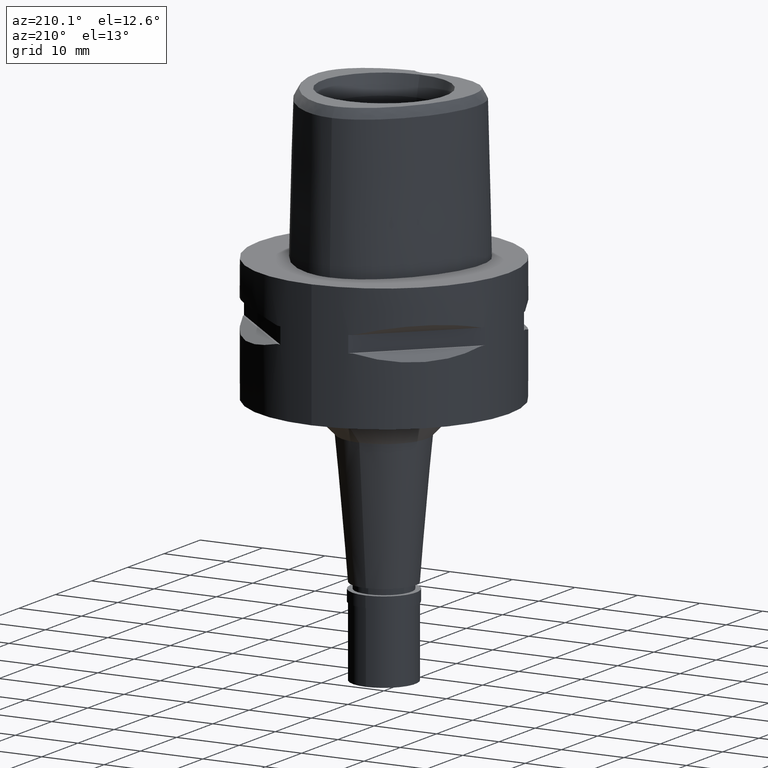
[diagram: clean part render]
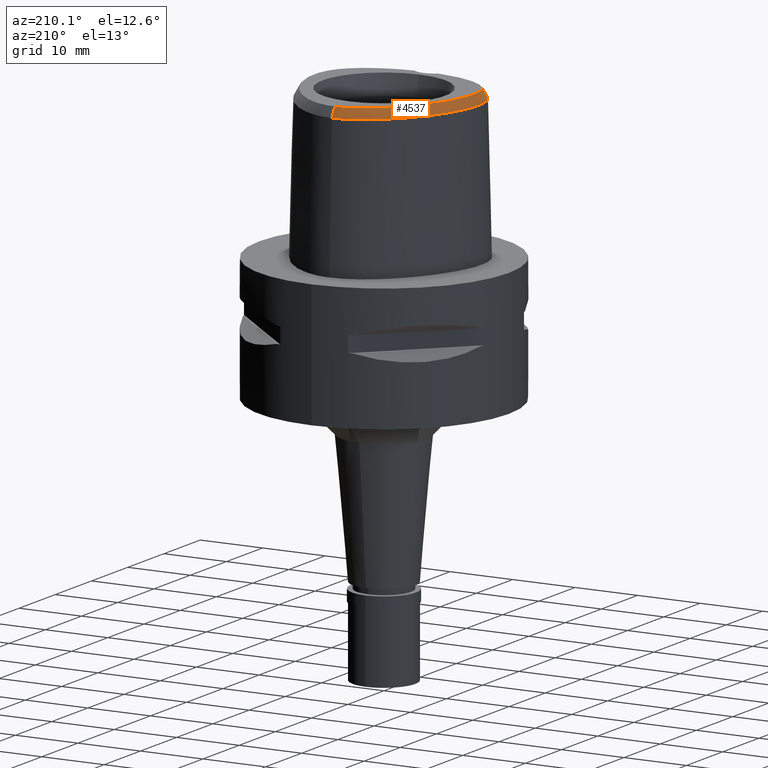
[diagram: same view with one face highlighted and labeled with its STEP entity id]
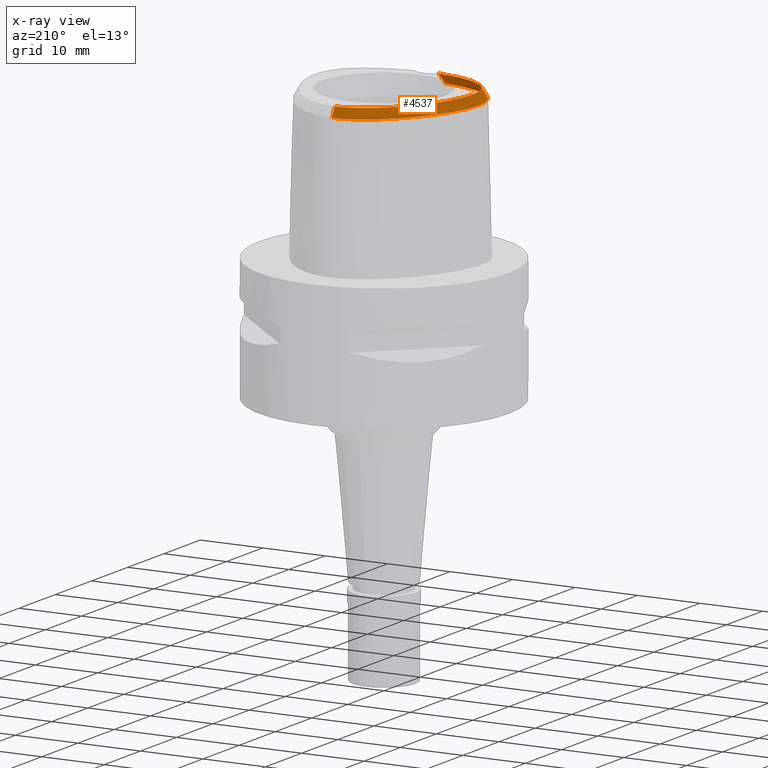
[diagram: x-ray of the same camera — body ghosted, the highlighted face saturated]
A machine part, auxiliary view. The second image highlights one B-rep face of the part: STEP entity #4537.
The next image is the same camera in x-ray: the body ghosted, the highlighted face saturated — about 0% of this face is hidden behind the body in this view.
In plain terms, the highlighted face is a freeform B-spline surface patch.
Its self-contained STEP definition (entity closure, byte-faithful):
#13 = CARTESIAN_POINT ( 'NONE',  ( -9.461949642908999536, -10.27565389877999991, 22.41659132208999949 ) ) ;
#38 = CARTESIAN_POINT ( 'NONE',  ( -7.666593202468000356, -10.51781865839999952, 23.54157057967000100 ) ) ;
#40 = CARTESIAN_POINT ( 'NONE',  ( -2.145202358281222743, -11.88058199921933422, 23.61561870677756403 ) ) ;
#64 = CARTESIAN_POINT ( 'NONE',  ( -8.292628815282999000, -9.858831194713999935, 24.10406072634999930 ) ) ;
#118 = CARTESIAN_POINT ( 'NONE',  ( 0.2476441349136999925, 13.82473732917000042, 23.54157073996999827 ) ) ;
#137 = CARTESIAN_POINT ( 'NONE',  ( -2.272794936003999844, 13.79076444038000027, 22.97908034890999929 ) ) ;
#142 = EDGE_LOOP ( 'NONE', ( #3043, #857, #396, #2967 ) ) ;
#160 = CARTESIAN_POINT ( 'NONE',  ( -5.325554841747999646, 11.47037327101999971, 24.10406076736999736 ) ) ;
#171 = CARTESIAN_POINT ( 'NONE',  ( -12.25469206170833480, -5.716132091641501489, 23.99999999999992895 ) ) ;
#186 = FACE_OUTER_BOUND ( 'NONE', #142, .T. ) ;
#193 = CARTESIAN_POINT ( 'NONE',  ( -7.606300872726211360, 9.460291049260554530, 23.99999999999949551 ) ) ;
#197 = CARTESIAN_POINT ( 'NONE',  ( -4.649494456246297425, 12.01569862248590681, 24.00000000000231992 ) ) ;
#216 = CARTESIAN_POINT ( 'NONE',  ( -10.56030324369852913, -8.308636727332366689, 23.99999999999988987 ) ) ;
#221 = CARTESIAN_POINT ( 'NONE',  ( -1.591423031973000057, -12.60134633935000004, 22.41659162168000208 ) ) ;
#233 = CARTESIAN_POINT ( 'NONE',  ( -12.39144147628000070, 0.1219901310690999913, 24.10406049083999847 ) ) ;
#260 = CARTESIAN_POINT ( 'NONE',  ( -8.557144725376998551, 8.748032990972999912, 23.54157062195999828 ) ) ;
#282 = CARTESIAN_POINT ( 'NONE',  ( -13.59762328403999909, -1.636476083785999958, 22.41659054759999847 ) ) ;
#304 = CARTESIAN_POINT ( 'NONE',  ( -13.63629650227000134, -2.516089415543000030, 22.41659067536999927 ) ) ;
#330 = CARTESIAN_POINT ( 'NONE',  ( -12.00135282760999900, 3.522838401703999978, 22.97908066880999911 ) ) ;
#341 = CARTESIAN_POINT ( 'NONE',  ( -9.075996546496313044, -10.47368666963242667, 22.52071717950007468 ) ) ;
#350 = CARTESIAN_POINT ( 'NONE',  ( -12.79339990034000074, -5.909886586550999965, 22.97908099604000043 ) ) ;
#368 = CARTESIAN_POINT ( 'NONE',  ( -12.50552227923999915, -4.595377243947000423, 24.10406073897999946 ) ) ;
#392 = CARTESIAN_POINT ( 'NONE',  ( -12.06179124933999880, -6.773514726855000667, 23.54157075530000043 ) ) ;
#396 = ORIENTED_EDGE ( 'NONE', *, *, #2890, .F. ) ;
#415 = CARTESIAN_POINT ( 'NONE',  ( -12.00019671756999884, -8.023386892387000202, 22.41659127907999860 ) ) ;
#465 = CARTESIAN_POINT ( 'NONE',  ( -4.401205687814000456, 13.20438657368999991, 22.41659724122999719 ) ) ;
#487 = CARTESIAN_POINT ( 'NONE',  ( -0.04784504539171999943, 13.51744368559000087, 24.10406070497999664 ) ) ;
#499 = CARTESIAN_POINT ( 'NONE',  ( -10.73901715994000128, -8.493405840528000184, 23.54157069984000117 ) ) ;
#505 = CARTESIAN_POINT ( 'NONE',  ( -1.669973839135000082, 13.95402365622999774, 22.97908096688000157 ) ) ;
#520 = CARTESIAN_POINT ( 'NONE',  ( -3.678874086876000149, -11.72068258363000126, 23.54157049556000203 ) ) ;
#526 = CARTESIAN_POINT ( 'NONE',  ( -0.05462346434944000129, 14.46350026968999991, 22.41659103785999818 ) ) ;
#537 = CARTESIAN_POINT ( 'NONE',  ( -8.357232578963911251, 8.586563883649542817, 24.00000000000138556 ) ) ;
#553 = CARTESIAN_POINT ( 'NONE',  ( -0.05010451837762999738, 13.83279588028999996, 23.54157081594000189 ) ) ;
#561 = CARTESIAN_POINT ( 'NONE',  ( -12.42392521664529959, -5.185948956749439454, 24.00000000000153477 ) ) ;
#564 = CARTESIAN_POINT ( 'NONE',  ( -4.949034528330000349, -12.09932332298000013, 22.41659342353000284 ) ) ;
#576 = CARTESIAN_POINT ( 'NONE',  ( -12.72050427839000086, 2.496131281136000357, 22.41659073552999715 ) ) ;
#581 = VERTEX_POINT ( 'NONE', #2156 ) ;
#594 = EDGE_CURVE ( 'NONE', #1535, #581, #4132, .T. ) ;
#599 = CARTESIAN_POINT ( 'NONE',  ( -12.65446433608000021, -1.710372220467999860, 24.10406073719000020 ) ) ;
#617 = CARTESIAN_POINT ( 'NONE',  ( -12.48241503204928016, -7.206725678149446424, 22.52071717950007823 ) ) ;
#627 = CARTESIAN_POINT ( 'NONE',  ( -8.311853707782999479, 8.549911354264001062, 24.10406074900999940 ) ) ;
#649 = CARTESIAN_POINT ( 'NONE',  ( -12.29332297416000053, 3.641885784423000150, 22.41659063756999970 ) ) ;
#670 = CARTESIAN_POINT ( 'NONE',  ( -6.056927386248000644, 10.88372645799999994, 24.10406068296000015 ) ) ;
#684 = CARTESIAN_POINT ( 'NONE',  ( -6.968888528386562697, -11.49954675419569305, 22.52071717950007823 ) ) ;
#697 = CARTESIAN_POINT ( 'NONE',  ( -11.78467009479999916, -6.622824703578999994, 24.10406071875000222 ) ) ;
#717 = CARTESIAN_POINT ( 'NONE',  ( -13.23468978066000012, -4.045971607218999289, 22.97908095360999781 ) ) ;
#736 = CARTESIAN_POINT ( 'NONE',  ( -13.54757813508999931, -4.085593416962999491, 22.41659107929000072 ) ) ;
#761 = CARTESIAN_POINT ( 'NONE',  ( -12.49659115186999969, -5.803134790827000344, 23.54157084698000091 ) ) ;
#836 = CARTESIAN_POINT ( 'NONE',  ( -0.9956916726069000578, 13.44197942036999827, 24.10406073436000085 ) ) ;
#853 = CARTESIAN_POINT ( 'NONE',  ( -13.09020864880000090, -6.016638382274999586, 22.41659114509000261 ) ) ;
#857 = ORIENTED_EDGE ( 'NONE', *, *, #3787, .F. ) ;
#861 = CARTESIAN_POINT ( 'NONE',  ( -4.963267295009000435, 12.49439427225000188, 22.97908365341999826 ) ) ;
#880 = CARTESIAN_POINT ( 'NONE',  ( -2.084965041675000297, 13.18857030538999986, 24.10406076389000063 ) ) ;
#891 = CARTESIAN_POINT ( 'NONE',  ( -6.712679994720382126, -10.63416489131229348, 24.00000000000154188 ) ) ;
#904 = CARTESIAN_POINT ( 'NONE',  ( -3.422609878955999996, 13.00130963129999984, 23.54157182123000069 ) ) ;
#916 = CARTESIAN_POINT ( 'NONE',  ( -8.320010339570121261, -9.910347637804029830, 24.00000000000749623 ) ) ;
#925 = CARTESIAN_POINT ( 'NONE',  ( -2.102339319506791426, 13.24427330329440622, 23.99999999999986500 ) ) ;
#932 = CARTESIAN_POINT ( 'NONE',  ( -11.49585496037999910, 4.666792708320000038, 22.97908146813000130 ) ) ;
#936 = B_SPLINE_CURVE_WITH_KNOTS ( 'NONE', 3,
 ( #1221, #2632, #4305, #1124, #4092, #1982, #891, #2304, #916, #2674, #3002, #3754, #216, #4469, #2699, #2651, #1260, #3727, #171, #561, #3402, #4426, #3050, #4444, #1586, #1608, #1959, #1633, #1284, #1933, #3355, #3379, #1238, #4071, #537, #193, #3024, #2331, #4503, #197, #2039, #4478, #1294, #925, #1242, #1637, #3476, #4171, #1988 ),
 .UNSPECIFIED., .F., .F.,
 ( 4, 1, 1, 1, 1, 1, 1, 1, 1, 1, 1, 1, 1, 1, 1, 1, 1, 1, 1, 1, 1, 1, 1, 1, 1, 1, 1, 1, 1, 1, 1, 1, 1, 1, 1, 1, 1, 1, 1, 1, 1, 1, 1, 1, 1, 1, 4 ),
 ( 0.0000000000000000000, 0.009873886129200037942, 0.03187668865969994769, 0.05387949119019996846, 0.07588229372080002033, 0.09788509625140007220, 0.1198878987818999819, 0.1418907013124000027, 0.1638935038429000235, 0.1858963063735000754, 0.2078991089039999851, 0.2299019114346000370, 0.2519047139651000577, 0.2739075164956000785, 0.2959103190260999883, 0.3179131215567000401, 0.3399159240872999810, 0.3619187266178000018, 0.3839215291482999115, 0.4059243316788000433, 0.4279271342093999841, 0.4499299367398998939, 0.4719327392704999458, 0.4939355418009000465, 0.5159383443314999873, 0.5379411468621000392, 0.5599439493925999489, 0.5819467519232000008, 0.6039495544535999905, 0.6259523569842000423, 0.6479551595146999521, 0.6699579620453000040, 0.6919607645757999137, 0.7139635671063000455, 0.7359663696367999552, 0.7579691721674000071, 0.7799719746980000590, 0.8019747772284999687, 0.8239775797591000206, 0.8459803822895000103, 0.8679831848201000621, 0.8899859873505999719, 0.9119887898811600557, 0.9339915924116999335, 0.9559943949422300413, 0.9779971974727700301, 1.000000000000000000 ),
 .UNSPECIFIED. ) ;
#954 = CARTESIAN_POINT ( 'NONE',  ( -13.18176230909999980, -0.7371904063837000365, 22.97908064972000020 ) ) ;
#982 = CARTESIAN_POINT ( 'NONE',  ( -9.551636492684000501, 7.961562424219000178, 22.97908161402000005 ) ) ;
#1000 = CARTESIAN_POINT ( 'NONE',  ( -4.736458213768398373, -12.13940339377828082, 22.52071717950007823 ) ) ;
#1009 = CARTESIAN_POINT ( 'NONE',  ( -10.91231643696999853, 5.802237434099000168, 22.97908069109999829 ) ) ;
#1020 = CARTESIAN_POINT ( 'NONE',  ( -1.515894611550202775, 14.29262276282085331, 22.52071717950008178 ) ) ;
#1028 = CARTESIAN_POINT ( 'NONE',  ( -7.796220674857000432, 9.633409603146999345, 23.54157101314999778 ) ) ;
#1041 = CARTESIAN_POINT ( 'NONE',  ( -12.06912915254208052, -7.841969072899914295, 22.52071717950007468 ) ) ;
#1049 = CARTESIAN_POINT ( 'NONE',  ( -10.06945035472999983, -8.672645979414001616, 24.10406073911999769 ) ) ;
#1073 = CARTESIAN_POINT ( 'NONE',  ( -13.43332551568000000, -4.781050324068000457, 22.41659052043000244 ) ) ;
#1093 = CARTESIAN_POINT ( 'NONE',  ( -10.27170418266999974, -8.914653742074001741, 23.54157066555999833 ) ) ;
#1114 = CARTESIAN_POINT ( 'NONE',  ( -12.92180142622999917, -4.006349797473998997, 23.54157082794000289 ) ) ;
#1124 = CARTESIAN_POINT ( 'NONE',  ( -3.634083631275836002, -11.46763769350362772, 23.99999999999949907 ) ) ;
#1161 = CARTESIAN_POINT ( 'NONE',  ( -1.741491812482000023, 14.26122389794000078, 22.41659109987000065 ) ) ;
#1200 = CARTESIAN_POINT ( 'NONE',  ( -12.00434466597999794, -6.179837081859000492, 24.10406071990999877 ) ) ;
#1210 = CARTESIAN_POINT ( 'NONE',  ( -3.694018669054999648, 13.57068733949000006, 22.41659451011999948 ) ) ;
#1221 = CARTESIAN_POINT ( 'NONE',  ( -1.908902231482000111, -11.68567671431999955, 24.00000000000000000 ) ) ;
#1230 = CARTESIAN_POINT ( 'NONE',  ( 0.3758606733416999801, 13.81815948156999951, 23.54157063991999976 ) ) ;
#1238 = CARTESIAN_POINT ( 'NONE',  ( -9.776246037422382074, 6.601694411330851331, 24.00000000000632738 ) ) ;
#1242 = CARTESIAN_POINT ( 'NONE',  ( -1.540168727110232894, 13.39645525874446008, 23.99999999999870681 ) ) ;
#1249 = CARTESIAN_POINT ( 'NONE',  ( -4.617512075209000422, 11.96690591393999981, 24.10406042706999585 ) ) ;
#1260 = CARTESIAN_POINT ( 'NONE',  ( -11.83593754558846101, -6.650702378112560709, 24.00000000000740741 ) ) ;
#1264 = CARTESIAN_POINT ( 'NONE',  ( -6.031305641127000072, -11.80380404432999875, 22.41659486017999825 ) ) ;
#1274 = CARTESIAN_POINT ( 'NONE',  ( -11.78034490956000013, 4.802740188745999284, 22.41659187728999925 ) ) ;
#1284 = CARTESIAN_POINT ( 'NONE',  ( -11.88013947726052244, 2.210420412499681131, 24.00000000000414246 ) ) ;
#1294 = CARTESIAN_POINT ( 'NONE',  ( -2.691801546375448773, 13.03762140635440225, 23.99999999999711164 ) ) ;
#1304 = CARTESIAN_POINT ( 'NONE',  ( -13.31745399016000064, 0.3153473693889000118, 22.41659429628000311 ) ) ;
#1315 = CARTESIAN_POINT ( 'NONE',  ( -2.786331694249999824, -12.48915782679999964, 22.41659123308999924 ) ) ;
#1322 = CARTESIAN_POINT ( 'NONE',  ( -6.443694316511000534E-11, 14.40001989798000182, 22.52071729252999788 ) ) ;
#1328 = CARTESIAN_POINT ( 'NONE',  ( -13.00561769887000096, -2.523599764637999954, 23.54157071099000120 ) ) ;
#1346 = LINE ( 'NONE', #1322, #2618 ) ;
#1355 = CARTESIAN_POINT ( 'NONE',  ( -13.28323696804999976, -1.661108129347000029, 22.97908061080000053 ) ) ;
#1368 = CARTESIAN_POINT ( 'NONE',  ( -12.68166860123694839, 2.767886241323707086, 22.52071717950007823 ) ) ;
#1380 = CARTESIAN_POINT ( 'NONE',  ( -12.55750951551000050, -0.8269807960769000044, 24.10406073321999898 ) ) ;
#1390 = CARTESIAN_POINT ( 'NONE',  ( -10.46238780242491018, -9.543613000371523825, 22.52071717950007468 ) ) ;
#1397 = CARTESIAN_POINT ( 'NONE',  ( -11.38145556628000143, -8.278458746206998953, 22.97908079416000149 ) ) ;
#1409 = CARTESIAN_POINT ( 'NONE',  ( -2.568703252653000479, -12.45023756080000155, 22.52071717950000007 ) ) ;
#1417 = CARTESIAN_POINT ( 'NONE',  ( -13.61729993408000006, -3.331564631617999872, 22.41659171232999981 ) ) ;
#1440 = CARTESIAN_POINT ( 'NONE',  ( -11.49892451419999873, -7.640367138401999547, 23.54157088578000412 ) ) ;
#1460 = CARTESIAN_POINT ( 'NONE',  ( -7.796007622060999509, -10.80538586414000157, 22.97908040073000180 ) ) ;
#1482 = CARTESIAN_POINT ( 'NONE',  ( -7.537178782875999516, -10.23025145266000102, 24.10406075860999664 ) ) ;
#1535 = VERTEX_POINT ( 'NONE', #2566 ) ;
#1551 = CARTESIAN_POINT ( 'NONE',  ( -2.366709883168999884, 14.09186150787000003, 22.41659014141000128 ) ) ;
#1576 = CARTESIAN_POINT ( 'NONE',  ( -0.4855030213370999936, 13.50054995881999886, 24.10406074297999979 ) ) ;
#1586 = CARTESIAN_POINT ( 'NONE',  ( -12.71262584673890750, -1.705815288732803969, 23.99999999999527489 ) ) ;
#1599 = CARTESIAN_POINT ( 'NONE',  ( -2.785814309004999600, 13.27685610021000073, 23.54157051797000122 ) ) ;
#1608 = CARTESIAN_POINT ( 'NONE',  ( -12.61525294081540594, -0.8186751790038835352, 23.99999999999178968 ) ) ;
#1612 = CARTESIAN_POINT ( 'NONE',  ( -2.017801248525000091, -12.25184106638999815, 22.97908129947000333 ) ) ;
#1633 = CARTESIAN_POINT ( 'NONE',  ( -12.20504609755023928, 1.147983555866497474, 23.99999999999567990 ) ) ;
#1636 = CARTESIAN_POINT ( 'NONE',  ( -1.568831294058999903, -12.28703251924000028, 22.97908130332000098 ) ) ;
#1637 = CARTESIAN_POINT ( 'NONE',  ( -1.004624940264418731, 13.49964524824425993, 24.00000000000133227 ) ) ;
#1647 = CARTESIAN_POINT ( 'NONE',  ( -10.63622056724999965, 5.649964943741999868, 23.54157071006000024 ) ) ;
#1652 = EDGE_CURVE ( 'NONE', #1535, #2741, #936, .T. ) ;
#1662 = CARTESIAN_POINT ( 'NONE',  ( -2.706528047060999587, -11.86378128286999889, 23.54157087246000302 ) ) ;
#1675 = CARTESIAN_POINT ( 'NONE',  ( -12.12344222425000062, 2.293139535302999743, 23.54157072841000087 ) ) ;
#1697 = CARTESIAN_POINT ( 'NONE',  ( -12.14878510087000052, 1.132570213328000008, 24.10406046977999850 ) ) ;
#1722 = CARTESIAN_POINT ( 'NONE',  ( -12.98754637684000102, -3.296147415783999612, 23.54157101121000295 ) ) ;
#1747 = CARTESIAN_POINT ( 'NONE',  ( -9.726895431571000117, 6.570597241045000203, 24.10406068582999950 ) ) ;
#1756 = CARTESIAN_POINT ( 'NONE',  ( -11.42690036616751925, -8.639965951774415842, 22.52071717950007468 ) ) ;
#1763 = CARTESIAN_POINT ( 'NONE',  ( -11.80287365142000056, -7.208509741748000188, 23.54157061669999962 ) ) ;
#1783 = CARTESIAN_POINT ( 'NONE',  ( -10.67621183854000044, -9.398669267392001814, 22.41659051843999961 ) ) ;
#1784 = CARTESIAN_POINT ( 'NONE',  ( -2.377475776461979606, -12.13328147863462902, 23.12252443327756524 ) ) ;
#1805 = CARTESIAN_POINT ( 'NONE',  ( -8.736653211275999809, -10.69423236839999980, 22.41659071276000148 ) ) ;
#1808 = CARTESIAN_POINT ( 'NONE',  ( -1.908902231482000111, -11.68567671431999955, 24.00000000000000000 ) ) ;
#1830 = CARTESIAN_POINT ( 'NONE',  ( -12.97555951956000087, -5.338997210696999396, 22.97908066934000004 ) ) ;
#1831 = CARTESIAN_POINT ( 'NONE',  ( -2.568703252653000479, -12.45023756080000155, 22.52071717950000007 ) ) ;
#1900 = CARTESIAN_POINT ( 'NONE',  ( 0.4105878802249999793, 14.44742024061999963, 22.41659042989000028 ) ) ;
#1912 = CARTESIAN_POINT ( 'NONE',  ( -1.523647818232999995, -11.65840487903999900, 24.10406066660999969 ) ) ;
#1922 = CARTESIAN_POINT ( 'NONE',  ( -2.901167410985999950, 13.57039565022000005, 22.97908026333000109 ) ) ;
#1933 = CARTESIAN_POINT ( 'NONE',  ( -11.47142705079548719, 3.306767418048056406, 23.99999999999787548 ) ) ;
#1937 = CARTESIAN_POINT ( 'NONE',  ( -5.755106878618001076, -10.89904924706000067, 24.10406045376999629 ) ) ;
#1959 = CARTESIAN_POINT ( 'NONE',  ( -12.44854562273626364, 0.1339138360837694164, 24.00000000000450839 ) ) ;
#1963 = CARTESIAN_POINT ( 'NONE',  ( -1.546239556145999838, -11.97271869913999964, 23.54157098495999989 ) ) ;
#1967 = CARTESIAN_POINT ( 'NONE',  ( -1.335434154400999961E-10, 13.57127880780999796, 24.00000000000000000 ) ) ;
#1973 = CARTESIAN_POINT ( 'NONE',  ( -1.092267469100999921, 14.06539332342999948, 22.97908063862999839 ) ) ;
#1982 = CARTESIAN_POINT ( 'NONE',  ( -5.772139147997724429, -10.95484250004194493, 23.99999999999548095 ) ) ;
#1986 = CARTESIAN_POINT ( 'NONE',  ( -2.746429870655999750, -12.17646955482999793, 22.97908105276999891 ) ) ;
#1988 = CARTESIAN_POINT ( 'NONE',  ( -1.335434154400999961E-10, 13.57127880780999796, 24.00000000000000000 ) ) ;
#2000 = CARTESIAN_POINT ( 'NONE',  ( -12.45289837578000025, 1.215885517949000016, 23.54157185205000147 ) ) ;
#2012 = CARTESIAN_POINT ( 'NONE',  ( -4.802078537713999395, -11.48605082639999964, 23.54157150664000042 ) ) ;
#2025 = CARTESIAN_POINT ( 'NONE',  ( -6.672813631747000152, 11.60177327154999993, 22.41659137289999748 ) ) ;
#2039 = CARTESIAN_POINT ( 'NONE',  ( -3.965203405003652648, 12.43107680024196071, 23.99999999999599254 ) ) ;
#2050 = CARTESIAN_POINT ( 'NONE',  ( -13.00878315219999948, 0.2508949566156000177, 22.97908302779999801 ) ) ;
#2070 = CARTESIAN_POINT ( 'NONE',  ( -12.69027829717000166, -2.527354939184999871, 24.10406072880999773 ) ) ;
#2093 = CARTESIAN_POINT ( 'NONE',  ( -10.26041510772000009, 6.906782621828000401, 22.97908111481999782 ) ) ;
#2114 = CARTESIAN_POINT ( 'NONE',  ( -11.53832442471999897, -7.036708106257999695, 24.10406075019999861 ) ) ;
#2132 = CARTESIAN_POINT ( 'NONE',  ( -10.51973624500000071, -8.266695234849999352, 24.10406073133000149 ) ) ;
#2153 = CARTESIAN_POINT ( 'NONE',  ( -9.129029616779000378, -9.739932597079999255, 23.54157089823000248 ) ) ;
#2156 = CARTESIAN_POINT ( 'NONE',  ( -2.568703252653000479, -12.45023756080000155, 22.52071717950000007 ) ) ;
#2180 = CARTESIAN_POINT ( 'NONE',  ( -12.81479002472000062, -4.657268270653999842, 23.54157066612999927 ) ) ;
#2230 = CARTESIAN_POINT ( 'NONE',  ( -2.670461207024999783, 12.98331655019999964, 24.10406077261000135 ) ) ;
#2268 = CARTESIAN_POINT ( 'NONE',  ( -11.24828841250999822, -7.448857261408999619, 24.10406068912999800 ) ) ;
#2277 = CARTESIAN_POINT ( 'NONE',  ( 0.3584970699000000205, 13.50352910203999990, 24.10406074493999995 ) ) ;
#2296 = CARTESIAN_POINT ( 'NONE',  ( -3.936549591614000310, 12.38025533710999859, 24.10406029728999755 ) ) ;
#2304 = CARTESIAN_POINT ( 'NONE',  ( -7.561120467872154194, -10.28345142432276660, 24.00000000000162004 ) ) ;
#2308 = CARTESIAN_POINT ( 'NONE',  ( -1.959530242942000067, -11.62423855186000132, 24.10406066699999883 ) ) ;
#2321 = CARTESIAN_POINT ( 'NONE',  ( -4.246320322414000259, 12.92967616149999976, 22.97908492657999702 ) ) ;
#2331 = CARTESIAN_POINT ( 'NONE',  ( -6.094907065611042896, 10.92800604363066164, 24.00000000000187228 ) ) ;
#2337 = CARTESIAN_POINT ( 'NONE',  ( -5.847173132787999883, -11.20063417949000062, 23.54157192257999753 ) ) ;
#2345 = CARTESIAN_POINT ( 'NONE',  ( -11.82491119718000050, 2.191643662385999836, 24.10406072485000095 ) ) ;
#2356 = VERTEX_POINT ( 'NONE', #2432 ) ;
#2365 = CARTESIAN_POINT ( 'NONE',  ( -13.49388870589999812, -0.6922952115371000525, 22.41659060797000080 ) ) ;
#2377 = CARTESIAN_POINT ( 'NONE',  ( -2.046936751315999725, -12.56564232365000144, 22.41659161571000070 ) ) ;
#2381 = CARTESIAN_POINT ( 'NONE',  ( -6.443694316511000534E-11, 14.40001989798000182, 22.52071729252999788 ) ) ;
#2390 = CARTESIAN_POINT ( 'NONE',  ( -6.467518216580999457, 11.36242433370000171, 22.97908114292000192 ) ) ;
#2407 = CARTESIAN_POINT ( 'NONE',  ( -12.82590901148613582, -6.531187915556036394, 22.52071717950007468 ) ) ;
#2409 = DIRECTION ( 'NONE',  ( -4.075614211846980818E-11, -0.4887572544032980359, 0.8724198222576960982 ) ) ;
#2411 = B_SPLINE_CURVE_WITH_KNOTS ( 'NONE', 3,
 ( #1409, #3103, #1000, #684, #341, #1390, #1756, #1041, #617, #2407, #3458, #3781, #4173, #2775, #1368, #4590, #4526, #4148, #3169, #1020, #3081, #2381 ),
 .UNSPECIFIED., .F., .F.,
 ( 4, 1, 1, 1, 1, 1, 1, 1, 1, 1, 1, 1, 1, 1, 1, 1, 1, 1, 1, 4 ),
 ( 0.0000000000000000000, 0.03040433083231408248, 0.1185493916654516006, 0.1626219220818617694, 0.2066944524983776177, 0.2507669829149992702, 0.2728032481232043338, 0.2948395133314093419, 0.3168757785398259030, 0.3389120437480309667, 0.3829845741645468427, 0.4270571045810626631, 0.4711296349975786502, 0.5592746958306104021, 0.6474197566637478474, 0.7355648174967795994, 0.8237098783298112403, 0.9118549391628536505, 0.9559274695793695820, 1.000000000000000000 ),
 .UNSPECIFIED. ) ;
#2417 = CARTESIAN_POINT ( 'NONE',  ( -7.026569400069000437, 10.42663464638000015, 23.54157154466999913 ) ) ;
#2432 = CARTESIAN_POINT ( 'NONE',  ( -6.443694316511000534E-11, 14.40001989798000182, 22.52071729252999788 ) ) ;
#2436 = CARTESIAN_POINT ( 'NONE',  ( -9.295124567631999568, 7.778209107986000070, 23.54157112448000078 ) ) ;
#2457 = CARTESIAN_POINT ( 'NONE',  ( -10.47395801059999876, -9.156661504733000001, 22.97908059199999897 ) ) ;
#2481 = CARTESIAN_POINT ( 'NONE',  ( -12.19978240340000042, -5.696382995102999836, 24.10406069793000228 ) ) ;
#2501 = CARTESIAN_POINT ( 'NONE',  ( -8.588645079277998917, -10.41576531049999943, 22.97908071728999957 ) ) ;
#2524 = CARTESIAN_POINT ( 'NONE',  ( -11.74956061587999834, -7.831877015395000363, 22.97908108242999958 ) ) ;
#2566 = CARTESIAN_POINT ( 'NONE',  ( -1.908902231482000111, -11.68567671431999955, 24.00000000000000000 ) ) ;
#2576 = CARTESIAN_POINT ( 'NONE',  ( -3.558314274006000311, 13.28599848538999950, 22.97908316566999787 ) ) ;
#2597 = CARTESIAN_POINT ( 'NONE',  ( 0.2708995931529000201, 14.45465993255000114, 22.41659077545000045 ) ) ;
#2612 = CARTESIAN_POINT ( 'NONE',  ( -12.60891307179999998, -3.966727987730000127, 24.10406070225999997 ) ) ;
#2618 = VECTOR ( 'NONE', #2409, 999.9999999999998863 ) ;
#2624 = CARTESIAN_POINT ( 'NONE',  ( -4.790389685108999984, 12.23065009309000040, 23.54157204023999839 ) ) ;
#2632 = CARTESIAN_POINT ( 'NONE',  ( -2.090687641573827804, -11.66928185012662134, 23.99999999999760902 ) ) ;
#2643 = CARTESIAN_POINT ( 'NONE',  ( -0.5343158663694999033, 14.12953188237000113, 22.97908055412999673 ) ) ;
#2651 = CARTESIAN_POINT ( 'NONE',  ( -11.58726606717071661, -7.068491431885015608, 23.99999999999791811 ) ) ;
#2674 = CARTESIAN_POINT ( 'NONE',  ( -8.993364728476198167, -9.521626202593687083, 24.00000000000262190 ) ) ;
#2689 = CARTESIAN_POINT ( 'NONE',  ( -6.806846421191000474, 10.20047167908000141, 24.10406053956000250 ) ) ;
#2699 = CARTESIAN_POINT ( 'NONE',  ( -11.29465612496605331, -7.484286614359557888, 24.00000000000582290 ) ) ;
#2704 = CARTESIAN_POINT ( 'NONE',  ( -4.875556533022000316, -11.79268707469000077, 22.97908246508000119 ) ) ;
#2713 = CARTESIAN_POINT ( 'NONE',  ( -12.86963591230999882, -0.7820856012303000204, 23.54157069146999959 ) ) ;
#2724 = CARTESIAN_POINT ( 'NONE',  ( -1.650771031721999904, -11.64926504696000009, 24.10406066551000137 ) ) ;
#2737 = CARTESIAN_POINT ( 'NONE',  ( -13.32095710057000026, -2.519844590089999947, 22.97908069317999846 ) ) ;
#2741 = VERTEX_POINT ( 'NONE', #1967 ) ;
#2762 = CARTESIAN_POINT ( 'NONE',  ( -11.70938268105000013, 3.403791018984000161, 23.54157070005000207 ) ) ;
#2775 = CARTESIAN_POINT ( 'NONE',  ( -13.44334616472509758, -0.2854647376912637924, 22.52071717950007468 ) ) ;
#2784 = CARTESIAN_POINT ( 'NONE',  ( -13.30242315545999965, -3.313856023700999742, 22.97908136176999605 ) ) ;
#2802 = CARTESIAN_POINT ( 'NONE',  ( -12.58009231437999986, -6.437715465236999890, 22.97908078045000124 ) ) ;
#2824 = CARTESIAN_POINT ( 'NONE',  ( -12.33891240387000110, -6.924204750131000452, 22.97908079185999952 ) ) ;
#2852 = CARTESIAN_POINT ( 'NONE',  ( -9.552858698141999838, -9.075193167746999023, 24.10406067237000016 ) ) ;
#2872 = CARTESIAN_POINT ( 'NONE',  ( -7.925422041653000349, -11.09295306987000096, 22.41659022179999994 ) ) ;
#2890 = EDGE_CURVE ( 'NONE', #581, #2356, #2411, .T. ) ;
#2895 = CARTESIAN_POINT ( 'NONE',  ( -6.692198084298000005, -10.57954161977000140, 24.10406065385000218 ) ) ;
#2946 = CARTESIAN_POINT ( 'NONE',  ( 0.2592718640333000479, 14.13969863085999812, 22.97908075771000114 ) ) ;
#2967 = ORIENTED_EDGE ( 'NONE', *, *, #594, .F. ) ;
#2980 = CARTESIAN_POINT ( 'NONE',  ( -3.733831710162000217, -12.03116716253000007, 22.97908021341000051 ) ) ;
#2993 = CARTESIAN_POINT ( 'NONE',  ( -5.515228805860999728, 11.72229507875000110, 23.54157054108999958 ) ) ;
#3002 = CARTESIAN_POINT ( 'NONE',  ( -9.587006019868914208, -9.122502708653222214, 23.99999999999746692 ) ) ;
#3005 = CARTESIAN_POINT ( 'NONE',  ( -5.939239386957000377, -11.50221911190999968, 22.97908339138000144 ) ) ;
#3017 = CARTESIAN_POINT ( 'NONE',  ( -4.091434957014000062, 12.65496574930999962, 23.54157261194000128 ) ) ;
#3024 = CARTESIAN_POINT ( 'NONE',  ( -6.847495201777410223, 10.24231185838903535, 24.00000000000092015 ) ) ;
#3028 = CARTESIAN_POINT ( 'NONE',  ( -1.675265600519000087, -11.96344212110000171, 23.54157098980000029 ) ) ;
#3040 = CARTESIAN_POINT ( 'NONE',  ( -1.140555367348000004, 14.37710027496000009, 22.41659059076999938 ) ) ;
#3043 = ORIENTED_EDGE ( 'NONE', *, *, #1652, .T. ) ;
#3050 = CARTESIAN_POINT ( 'NONE',  ( -12.73092184453139986, -3.281714902708715798, 23.99999999999919353 ) ) ;
#3053 = CARTESIAN_POINT ( 'NONE',  ( -7.024336931232999959, -11.46532375884000032, 22.41659181582999949 ) ) ;
#3066 = CARTESIAN_POINT ( 'NONE',  ( -11.41741253449000126, 3.284743636264999989, 24.10406073127999704 ) ) ;
#3079 = CARTESIAN_POINT ( 'NONE',  ( -2.666626223466000312, -11.55109301089999896, 24.10406069214000269 ) ) ;
#3081 = CARTESIAN_POINT ( 'NONE',  ( -0.5039711950886349712, 14.40001990034313906, 22.52071717950007468 ) ) ;
#3089 = CARTESIAN_POINT ( 'NONE',  ( -12.96885065207000132, -1.685740174907000011, 23.54157067399999903 ) ) ;
#3103 = CARTESIAN_POINT ( 'NONE',  ( -3.014424021963483913, -12.39773933600348776, 22.52071717950007468 ) ) ;
#3113 = CARTESIAN_POINT ( 'NONE',  ( -8.262281615742001151, 10.05824048019999850, 22.41659171902999859 ) ) ;
#3124 = B_SPLINE_SURFACE_WITH_KNOTS ( 'NONE', 3, 3, ( 
 ( #2277, #1230, #3678, #1900 ),
 ( #3304, #118, #2946, #2597 ),
 ( #487, #553, #4043, #526 ),
 ( #1576, #4017, #2643, #3995 ),
 ( #836, #3323, #1973, #3040 ),
 ( #4436, #3393, #505, #1161 ),
 ( #880, #4064, #137, #1551 ),
 ( #2230, #1599, #1922, #3654 ),
 ( #4389, #904, #2576, #1210 ),
 ( #2296, #3017, #2321, #465 ),
 ( #1249, #2624, #861, #3345 ),
 ( #160, #2993, #4417, #3467 ),
 ( #670, #3792, #2390, #2025 ),
 ( #2689, #2417, #4113, #4512 ),
 ( #3512, #1028, #4207, #3113 ),
 ( #627, #260, #4536, #4160 ),
 ( #3136, #2436, #982, #3862 ),
 ( #1747, #4459, #2093, #3442 ),
 ( #3820, #1647, #1009, #3769 ),
 ( #3842, #4135, #932, #1274 ),
 ( #3066, #2762, #330, #649 ),
 ( #2345, #1675, #3487, #576 ),
 ( #1697, #2000, #3417, #4561 ),
 ( #233, #4490, #2050, #1304 ),
 ( #1380, #2713, #954, #2365 ),
 ( #599, #3089, #1355, #282 ),
 ( #2070, #1328, #2737, #304 ),
 ( #4187, #1722, #2784, #1417 ),
 ( #2612, #1114, #717, #736 ),
 ( #368, #2180, #4227, #1073 ),
 ( #4035, #4316, #1830, #3603 ),
 ( #2481, #761, #350, #853 ),
 ( #1200, #3926, #2802, #3885 ),
 ( #697, #392, #2824, #3690 ),
 ( #2114, #1763, #3536, #4248 ),
 ( #2268, #1440, #2524, #415 ),
 ( #3176, #3225, #1397, #3907 ),
 ( #2132, #499, #3160, #4580 ),
 ( #1049, #1093, #2457, #1783 ),
 ( #2852, #4599, #3553, #3574 ),
 ( #3199, #2153, #3248, #13 ),
 ( #64, #4272, #2501, #1805 ),
 ( #1482, #38, #1460, #2872 ),
 ( #2895, #4291, #3946, #3053 ),
 ( #1937, #2337, #3005, #1264 ),
 ( #4500, #2012, #2704, #564 ),
 ( #3779, #520, #2980, #4126 ),
 ( #3079, #1662, #1986, #1315 ),
 ( #2308, #3405, #1612, #2377 ),
 ( #2724, #3028, #4145, #3360 ),
 ( #1912, #1963, #1636, #221 ) ),
 .UNSPECIFIED., .F., .F., .F.,
 ( 4, 1, 1, 1, 1, 1, 1, 1, 1, 1, 1, 1, 1, 1, 1, 1, 1, 1, 1, 1, 1, 1, 1, 1, 1, 1, 1, 1, 1, 1, 1, 1, 1, 1, 1, 1, 1, 1, 1, 1, 1, 1, 1, 1, 1, 1, 1, 1, 4 ),
 ( 4, 4 ),
 ( -0.01579924575333999798, 0.0000000000000000000, 0.02200280252723000110, 0.04400560505777000031, 0.06600840758830001098, 0.08801121011883999978, 0.1100140126494000004, 0.1320168151798999934, 0.1540196177104999897, 0.1760224202409000072, 0.1980252227715000035, 0.2200280253019999965, 0.2420308278325999929, 0.2640336303632000448, 0.2860364328937000100, 0.3080392354242000308, 0.3300420379546999960, 0.3520448404853000479, 0.3740476430157999577, 0.3960504455463999540, 0.4180532480767999992, 0.4400560506073999956, 0.4620588531379000163, 0.4840616556684999572, 0.5060644581990999535, 0.5280672607295000542, 0.5500700632601001061, 0.5720728657906000159, 0.5940756683211999567, 0.6160784708517000885, 0.6380812733821999982, 0.6600840759127000190, 0.6820868784432999599, 0.7040896809739000117, 0.7260924835043999215, 0.7480952860348999423, 0.7700980885653999630, 0.7921008910960000149, 0.8141036936264999246, 0.8361064961570999765, 0.8581092986875999973, 0.8801121012181000181, 0.9021149037485999278, 0.9241177062791999797, 0.9461205088098000315, 0.9681233113403000523, 0.9901261138707999621, 1.000000000000000000, 1.006872802233000019 ),
 ( -0.04840896340669000042, 1.048450769977999908 ),
 .UNSPECIFIED. ) ;
#3136 = CARTESIAN_POINT ( 'NONE',  ( -9.038612642579000322, 7.594855791753999164, 24.10406063494000151 ) ) ;
#3160 = CARTESIAN_POINT ( 'NONE',  ( -10.95829807488000007, -8.720116446205999239, 22.97908066835000085 ) ) ;
#3169 = CARTESIAN_POINT ( 'NONE',  ( -3.539803248252681112, 13.67924950903127801, 22.52071717950007468 ) ) ;
#3176 = CARTESIAN_POINT ( 'NONE',  ( -10.91050660037999975, -7.858739375564000262, 24.10406071850999865 ) ) ;
#3199 = CARTESIAN_POINT ( 'NONE',  ( -8.962569603715000000, -9.472071946231000794, 24.10406068629999865 ) ) ;
#3225 = CARTESIAN_POINT ( 'NONE',  ( -11.14598108332999971, -8.068599060885000895, 23.54157075632999963 ) ) ;
#3248 = CARTESIAN_POINT ( 'NONE',  ( -9.295489629844000845, -10.00779324792999958, 22.97908111016000277 ) ) ;
#3304 = CARTESIAN_POINT ( 'NONE',  ( 0.2360164057941000204, 13.50977602747999917, 24.10406072222999896 ) ) ;
#3323 = CARTESIAN_POINT ( 'NONE',  ( -1.043979570854000061, 13.75368637189999887, 23.54157068650000184 ) ) ;
#3345 = CARTESIAN_POINT ( 'NONE',  ( -5.136144904909000886, 12.75813845140999980, 22.41659526659000079 ) ) ;
#3355 = CARTESIAN_POINT ( 'NONE',  ( -10.97950574081599484, 4.420048049596372763, 24.00000000000020250 ) ) ;
#3360 = CARTESIAN_POINT ( 'NONE',  ( -1.724254738113000229, -12.59179626937999963, 22.41659163838999902 ) ) ;
#3379 = CARTESIAN_POINT ( 'NONE',  ( -10.41120247049750347, 5.525862884540964970, 24.00000000000794387 ) ) ;
#3393 = CARTESIAN_POINT ( 'NONE',  ( -1.598455865788000141, 13.64682341450999914, 23.54157083388999894 ) ) ;
#3402 = CARTESIAN_POINT ( 'NONE',  ( -12.56273685366758741, -4.606827092195581841, 23.99999999999828404 ) ) ;
#3405 = CARTESIAN_POINT ( 'NONE',  ( -1.988665745733000145, -11.93803980911999929, 23.54157098322999886 ) ) ;
#3417 = CARTESIAN_POINT ( 'NONE',  ( -12.75701165068999998, 1.299200822568999936, 22.97908323432000088 ) ) ;
#3442 = CARTESIAN_POINT ( 'NONE',  ( -10.52717494578999968, 7.074875312220000545, 22.41659132930999832 ) ) ;
#3458 = CARTESIAN_POINT ( 'NONE',  ( -13.19588017074350539, -5.576003004572465116, 22.52071717950007823 ) ) ;
#3467 = CARTESIAN_POINT ( 'NONE',  ( -5.894576734085999803, 12.22613869420000121, 22.41659008853000046 ) ) ;
#3476 = CARTESIAN_POINT ( 'NONE',  ( -0.4900182128078353072, 13.55873082896075843, 24.00000000000609290 ) ) ;
#3487 = CARTESIAN_POINT ( 'NONE',  ( -12.42197325131999897, 2.394635408219000450, 22.97908073197000078 ) ) ;
#3512 = CARTESIAN_POINT ( 'NONE',  ( -7.563190204414000917, 9.420994164619999722, 24.10406066021000271 ) ) ;
#3536 = CARTESIAN_POINT ( 'NONE',  ( -12.06742287813000125, -7.380311377237999793, 22.97908048318999974 ) ) ;
#3553 = CARTESIAN_POINT ( 'NONE',  ( -9.922018665172000595, -9.586647292929001196, 22.97908124675999986 ) ) ;
#3574 = CARTESIAN_POINT ( 'NONE',  ( -10.10659864869000124, -9.842374355520000506, 22.41659153396000193 ) ) ;
#3603 = CARTESIAN_POINT ( 'NONE',  ( -13.27949028743999982, -5.423321323790998960, 22.41659063839000154 ) ) ;
#3654 = CARTESIAN_POINT ( 'NONE',  ( -3.016520512966999856, 13.86393520022999937, 22.41659000869999829 ) ) ;
#3678 = CARTESIAN_POINT ( 'NONE',  ( 0.3932242767833000197, 14.13278986110000091, 22.97908053490999691 ) ) ;
#3690 = CARTESIAN_POINT ( 'NONE',  ( -12.61603355841000074, -7.074894773407001125, 22.41659082841000128 ) ) ;
#3727 = CARTESIAN_POINT ( 'NONE',  ( -12.05760136209902633, -6.203690849629297510, 24.00000000000549960 ) ) ;
#3754 = CARTESIAN_POINT ( 'NONE',  ( -10.10686734004783105, -8.717417447991401502, 24.00000000000692779 ) ) ;
#3769 = CARTESIAN_POINT ( 'NONE',  ( -11.18841230668999920, 5.954509924455999581, 22.41659067213999990 ) ) ;
#3779 = CARTESIAN_POINT ( 'NONE',  ( -3.623916463590999726, -11.41019800472999890, 24.10406077769999911 ) ) ;
#3781 = CARTESIAN_POINT ( 'NONE',  ( -13.49620532111193683, -4.288887307616996658, 22.52071717950007823 ) ) ;
#3787 = EDGE_CURVE ( 'NONE', #2356, #2741, #1346, .T. ) ;
#3792 = CARTESIAN_POINT ( 'NONE',  ( -6.262222801413999562, 11.12307539584999994, 23.54157091293999926 ) ) ;
#3820 = CARTESIAN_POINT ( 'NONE',  ( -10.36012469753999987, 5.497692453384999567, 24.10406072902000219 ) ) ;
#3842 = CARTESIAN_POINT ( 'NONE',  ( -10.92687506202999970, 4.394897747468999860, 24.10406064981000185 ) ) ;
#3862 = CARTESIAN_POINT ( 'NONE',  ( -9.808148417735999658, 8.144915740450999309, 22.41659210355999932 ) ) ;
#3885 = CARTESIAN_POINT ( 'NONE',  ( -12.86796613857999994, -6.566654656925999589, 22.41659081072000248 ) ) ;
#3907 = CARTESIAN_POINT ( 'NONE',  ( -11.61693004923000139, -8.488318431529000563, 22.41659083197999891 ) ) ;
#3926 = CARTESIAN_POINT ( 'NONE',  ( -12.29221849017999979, -6.308776273547999303, 23.54157075018000000 ) ) ;
#3946 = CARTESIAN_POINT ( 'NONE',  ( -6.913623982255000300, -11.17006304581000009, 22.97908142850000246 ) ) ;
#3995 = CARTESIAN_POINT ( 'NONE',  ( -0.5587222888857000802, 14.44402284413999915, 22.41659045971000097 ) ) ;
#4017 = CARTESIAN_POINT ( 'NONE',  ( -0.5099094438532999485, 13.81504092059999955, 23.54157064854999959 ) ) ;
#4035 = CARTESIAN_POINT ( 'NONE',  ( -12.36769798379000029, -5.170348984508000179, 24.10406073122999970 ) ) ;
#4043 = CARTESIAN_POINT ( 'NONE',  ( -0.05236399136354000228, 14.14814807498999905, 22.97908092690000004 ) ) ;
#4064 = CARTESIAN_POINT ( 'NONE',  ( -2.178879988838999804, 13.48966737289000051, 23.54157055639999996 ) ) ;
#4071 = CARTESIAN_POINT ( 'NONE',  ( -9.086067383146035681, 7.628776179868907548, 24.00000000000051159 ) ) ;
#4092 = CARTESIAN_POINT ( 'NONE',  ( -4.742193981401115366, -11.23614232521246770, 24.00000000000707701 ) ) ;
#4113 = CARTESIAN_POINT ( 'NONE',  ( -7.246292378948000490, 10.65279761368999978, 22.97908254977000198 ) ) ;
#4126 = CARTESIAN_POINT ( 'NONE',  ( -3.788789333446999752, -12.34165174142999888, 22.41658993126999988 ) ) ;
#4132 = B_SPLINE_CURVE_WITH_KNOTS ( 'NONE', 3,
 ( #1808, #40, #1784, #1831 ),
 .UNSPECIFIED., .F., .F.,
 ( 4, 4 ),
 ( 0.0000000000000000000, 1.000000000000000000 ),
 .UNSPECIFIED. ) ;
#4135 = CARTESIAN_POINT ( 'NONE',  ( -11.21136501121000073, 4.530845227894999994, 23.54157105896999980 ) ) ;
#4145 = CARTESIAN_POINT ( 'NONE',  ( -1.699760169316000047, -12.27761919523999978, 22.97908131409999655 ) ) ;
#4148 = CARTESIAN_POINT ( 'NONE',  ( -6.021703609490843156, 12.22251596750637681, 22.52071717950007468 ) ) ;
#4160 = CARTESIAN_POINT ( 'NONE',  ( -9.047726760564000159, 9.144276264392001252, 22.41659036787000048 ) ) ;
#4171 = CARTESIAN_POINT ( 'NONE',  ( -0.1649659295969396477, 13.57127880779848539, 24.00000000000393996 ) ) ;
#4173 = CARTESIAN_POINT ( 'NONE',  ( -13.60847657048610060, -2.623199557593745457, 22.52071717950007468 ) ) ;
#4187 = CARTESIAN_POINT ( 'NONE',  ( -12.67266959821999883, -3.278438807866999927, 24.10406066064999919 ) ) ;
#4207 = CARTESIAN_POINT ( 'NONE',  ( -8.029251145299001635, 9.845825041674000744, 22.97908136608999996 ) ) ;
#4227 = CARTESIAN_POINT ( 'NONE',  ( -13.12405777019999853, -4.719159297361000149, 22.97908059327999553 ) ) ;
#4248 = CARTESIAN_POINT ( 'NONE',  ( -12.33197210482999928, -7.552113012728000285, 22.41659034969000075 ) ) ;
#4272 = CARTESIAN_POINT ( 'NONE',  ( -8.440636947280999891, -10.13729825260999995, 23.54157072182000121 ) ) ;
#4291 = CARTESIAN_POINT ( 'NONE',  ( -6.802911033276999753, -10.87480233278999897, 23.54157104118000277 ) ) ;
#4305 = CARTESIAN_POINT ( 'NONE',  ( -2.674008066188283461, -11.60894038318711630, 23.99999999999465672 ) ) ;
#4316 = CARTESIAN_POINT ( 'NONE',  ( -12.67162875166999925, -5.254673097601999743, 23.54157070029000209 ) ) ;
#4389 = CARTESIAN_POINT ( 'NONE',  ( -3.286905483907000214, 12.71662077719999928, 24.10406047677999908 ) ) ;
#4417 = CARTESIAN_POINT ( 'NONE',  ( -5.704902769972999721, 11.97421688648000071, 22.97908031480999824 ) ) ;
#4426 = CARTESIAN_POINT ( 'NONE',  ( -12.66679745936934154, -3.974058027851185670, 24.00000000000625278 ) ) ;
#4436 = CARTESIAN_POINT ( 'NONE',  ( -1.526937892441000200, 13.33962317278999876, 24.10406070089999631 ) ) ;
#4444 = CARTESIAN_POINT ( 'NONE',  ( -12.74861612881330331, -2.526660231389727063, 24.00000000000895639 ) ) ;
#4459 = CARTESIAN_POINT ( 'NONE',  ( -9.993655269643998196, 6.738689931435999370, 23.54157090031999999 ) ) ;
#4469 = CARTESIAN_POINT ( 'NONE',  ( -10.95406941133408196, -7.897563445518392733, 24.00000000000235900 ) ) ;
#4478 = CARTESIAN_POINT ( 'NONE',  ( -3.312010815207019121, 12.76928825342289286, 23.99999999999886313 ) ) ;
#4490 = CARTESIAN_POINT ( 'NONE',  ( -12.70011231424000009, 0.1864425438423999992, 23.54157175932000001 ) ) ;
#4500 = CARTESIAN_POINT ( 'NONE',  ( -4.728600542405999363, -11.17941457811999939, 24.10406054819999966 ) ) ;
#4503 = CARTESIAN_POINT ( 'NONE',  ( -5.360644550569308997, 11.51697883926614807, 24.00000000000371259 ) ) ;
#4512 = CARTESIAN_POINT ( 'NONE',  ( -7.466015357827000543, 10.87896058099999941, 22.41659355487999861 ) ) ;
#4526 = CARTESIAN_POINT ( 'NONE',  ( -8.737913808019978745, 9.598635897784959070, 22.52071717950007823 ) ) ;
#4536 = CARTESIAN_POINT ( 'NONE',  ( -8.802435742969999311, 8.946154627683000626, 22.97908049491999805 ) ) ;
#4537 = ADVANCED_FACE ( 'NONE', ( #186 ), #3124, .F. ) ;
#4561 = CARTESIAN_POINT ( 'NONE',  ( -13.06112492559000060, 1.382516127189999944, 22.41659461659000030 ) ) ;
#4580 = CARTESIAN_POINT ( 'NONE',  ( -11.17757898980999975, -8.946827051884000070, 22.41659063687000142 ) ) ;
#4590 = CARTESIAN_POINT ( 'NONE',  ( -11.01301038053008163, 6.358384390486464532, 22.52071717950007468 ) ) ;
#4599 = CARTESIAN_POINT ( 'NONE',  ( -9.737438681656998440, -9.330920230338000110, 23.54157095957000223 ) ) ;